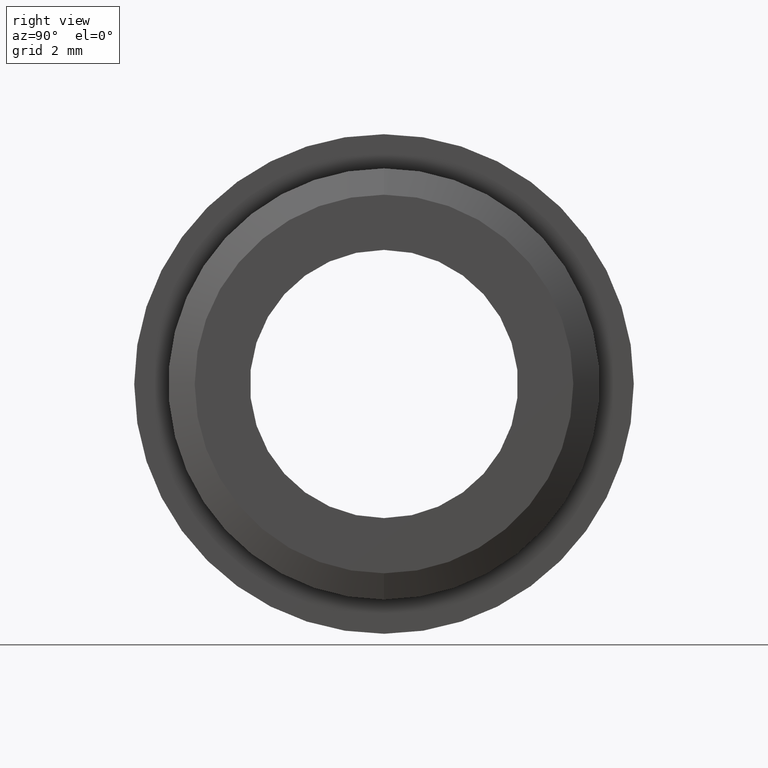
[diagram: clean part render]
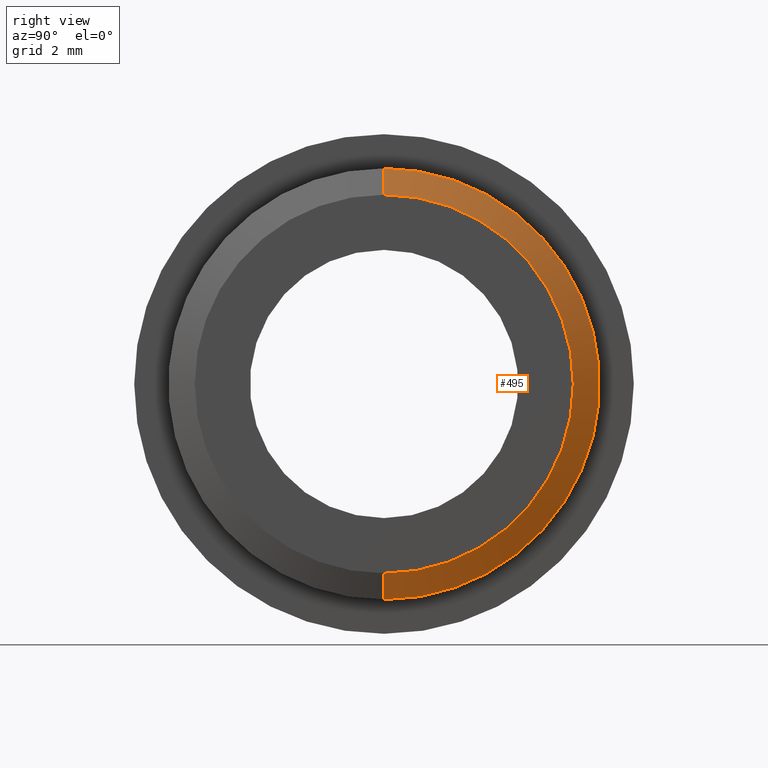
[diagram: same view with one face highlighted and labeled with its STEP entity id]
A machine part, right view. The second image highlights one B-rep face of the part: STEP entity #495.
In plain terms, the highlighted conical surface has half-angle 68.199 deg.
Its self-contained STEP definition (entity closure, byte-faithful):
#23 = VERTEX_POINT ( 'NONE', #721 ) ;
#46 = FACE_OUTER_BOUND ( 'NONE', #677, .T. ) ;
#57 = AXIS2_PLACEMENT_3D ( 'NONE', #94, #215, #534 ) ;
#61 = ORIENTED_EDGE ( 'NONE', *, *, #76, .T. ) ;
#69 = DIRECTION ( 'NONE',  ( -0.3713906763540910600, 0.0000000000000000000, 0.9284766908852645200 ) ) ;
#76 = EDGE_CURVE ( 'NONE', #467, #23, #490, .T. ) ;
#94 = CARTESIAN_POINT ( 'NONE',  ( 2.799999999999997200, 0.0000000000000000000, 0.0000000000000000000 ) ) ;
#98 = VERTEX_POINT ( 'NONE', #325 ) ;
#111 = AXIS2_PLACEMENT_3D ( 'NONE', #313, #708, #368 ) ;
#118 = AXIS2_PLACEMENT_3D ( 'NONE', #363, #245, #565 ) ;
#149 = CONICAL_SURFACE ( 'NONE', #118, 3.600000000000000100, 1.190289949682545400 ) ;
#153 = DIRECTION ( 'NONE',  ( -0.3713906763540910600, 1.137056007575565700E-016, -0.9284766908852645200 ) ) ;
#215 = DIRECTION ( 'NONE',  ( -1.000000000000000000, -0.0000000000000000000, -0.0000000000000000000 ) ) ;
#235 = VECTOR ( 'NONE', #69, 999.9999999999998900 ) ;
#238 = CARTESIAN_POINT ( 'NONE',  ( 2.799999999999997200, 4.714890176717308500E-016, -3.600000000000000100 ) ) ;
#245 = DIRECTION ( 'NONE',  ( -1.000000000000000000, -0.0000000000000000000, -0.0000000000000000000 ) ) ;
#246 = EDGE_CURVE ( 'NONE', #98, #467, #429, .T. ) ;
#281 = CIRCLE ( 'NONE', #111, 4.099999999999999600 ) ;
#313 = CARTESIAN_POINT ( 'NONE',  ( 2.600000000000005000, 0.0000000000000000000, 0.0000000000000000000 ) ) ;
#325 = CARTESIAN_POINT ( 'NONE',  ( 2.799999999999997200, 0.0000000000000000000, 3.600000000000000100 ) ) ;
#340 = CARTESIAN_POINT ( 'NONE',  ( 2.799999999999997200, 4.408728476930471200E-016, -3.600000000000000100 ) ) ;
#354 = EDGE_CURVE ( 'NONE', #98, #486, #679, .T. ) ;
#356 = VECTOR ( 'NONE', #153, 999.9999999999998900 ) ;
#359 = CARTESIAN_POINT ( 'NONE',  ( 2.600000000000005000, 0.0000000000000000000, 4.099999999999999600 ) ) ;
#363 = CARTESIAN_POINT ( 'NONE',  ( 2.799999999999997200, 0.0000000000000000000, 0.0000000000000000000 ) ) ;
#368 = DIRECTION ( 'NONE',  ( 0.0000000000000000000, 0.0000000000000000000, 1.000000000000000000 ) ) ;
#429 = CIRCLE ( 'NONE', #57, 3.600000000000000100 ) ;
#460 = ORIENTED_EDGE ( 'NONE', *, *, #549, .F. ) ;
#467 = VERTEX_POINT ( 'NONE', #238 ) ;
#482 = ORIENTED_EDGE ( 'NONE', *, *, #246, .T. ) ;
#486 = VERTEX_POINT ( 'NONE', #359 ) ;
#490 = LINE ( 'NONE', #340, #356 ) ;
#495 = ADVANCED_FACE ( 'NONE', ( #46 ), #149, .T. ) ;
#534 = DIRECTION ( 'NONE',  ( 0.0000000000000000000, 0.0000000000000000000, 1.000000000000000000 ) ) ;
#549 = EDGE_CURVE ( 'NONE', #486, #23, #281, .T. ) ;
#565 = DIRECTION ( 'NONE',  ( 0.0000000000000000000, 0.0000000000000000000, 1.000000000000000000 ) ) ;
#639 = CARTESIAN_POINT ( 'NONE',  ( 2.799999999999997200, 0.0000000000000000000, 3.600000000000000100 ) ) ;
#677 = EDGE_LOOP ( 'NONE', ( #482, #61, #460, #696 ) ) ;
#679 = LINE ( 'NONE', #639, #235 ) ;
#696 = ORIENTED_EDGE ( 'NONE', *, *, #354, .F. ) ;
#708 = DIRECTION ( 'NONE',  ( -1.000000000000000000, -0.0000000000000000000, -0.0000000000000000000 ) ) ;
#721 = CARTESIAN_POINT ( 'NONE',  ( 2.600000000000005000, 5.021051876504147400E-016, -4.099999999999999600 ) ) ;